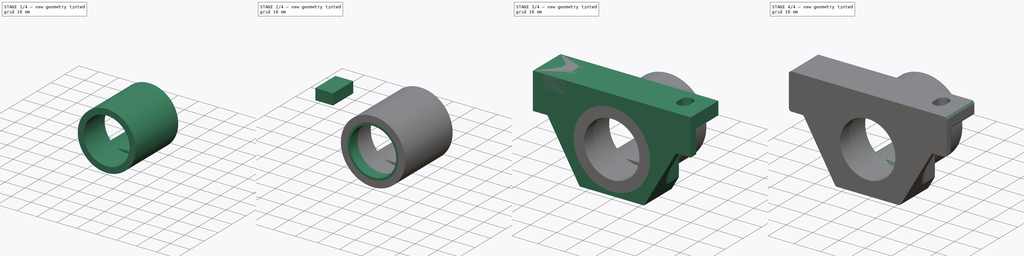
[diagram: build sequence overview — one tinted view per stage of 4, left to right]
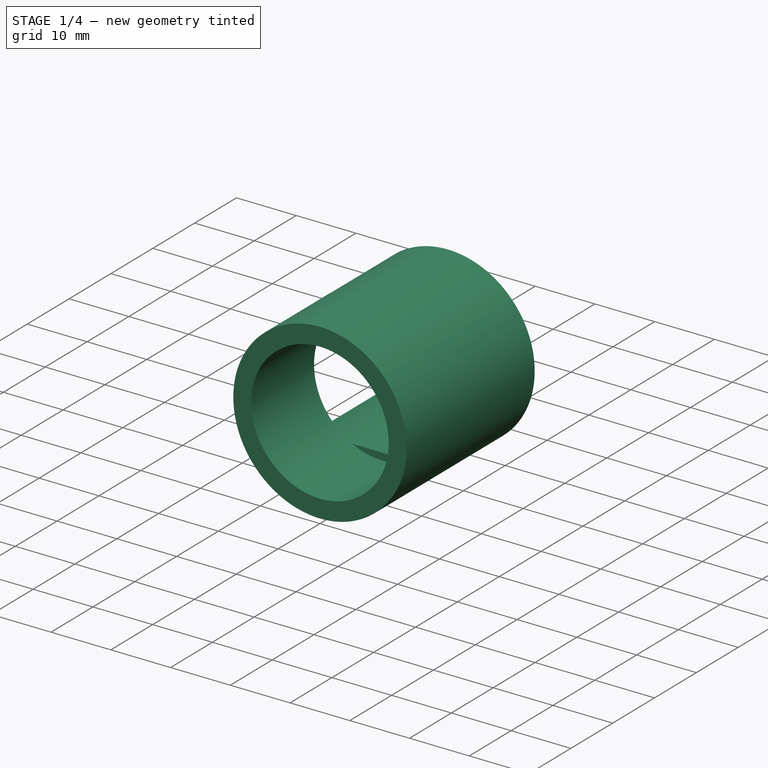
[diagram: stage 1 of 4 — iso view after this stage's code; geometry added in this stage tinted green]
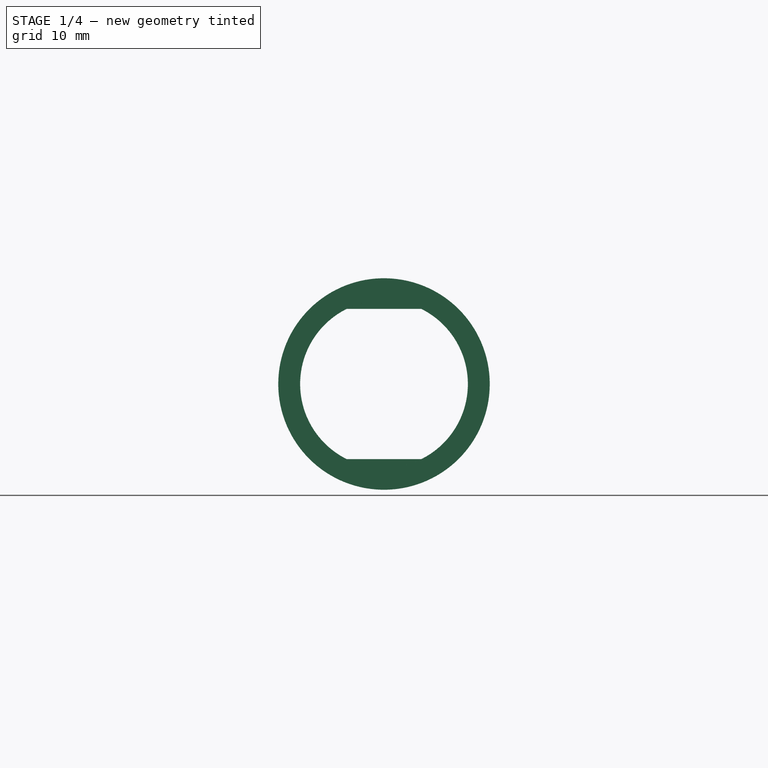
[diagram: stage 1 of 4 — front view after this stage's code; geometry added in this stage tinted green]
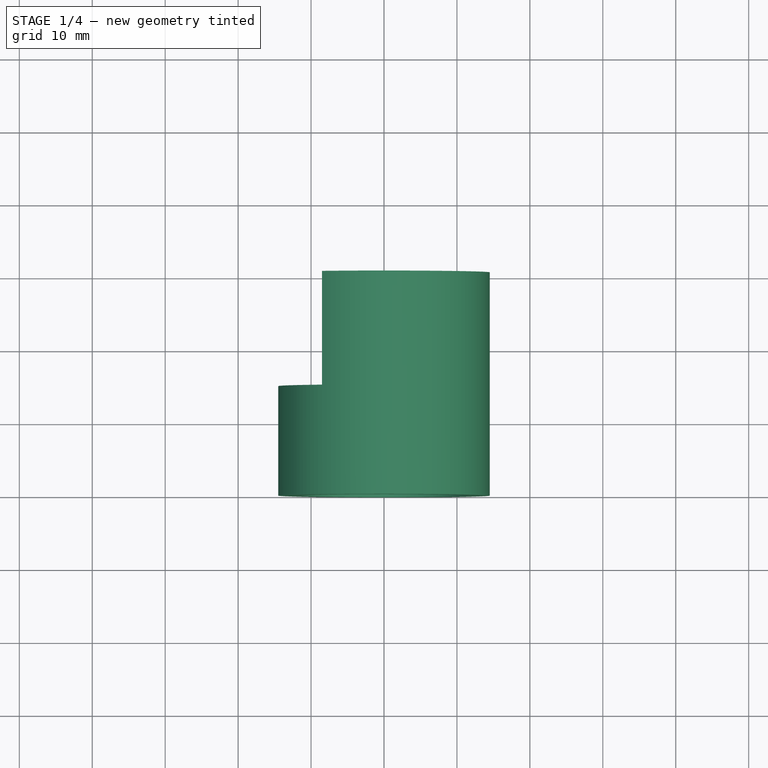
[diagram: stage 1 of 4 — top view after this stage's code; geometry added in this stage tinted green]
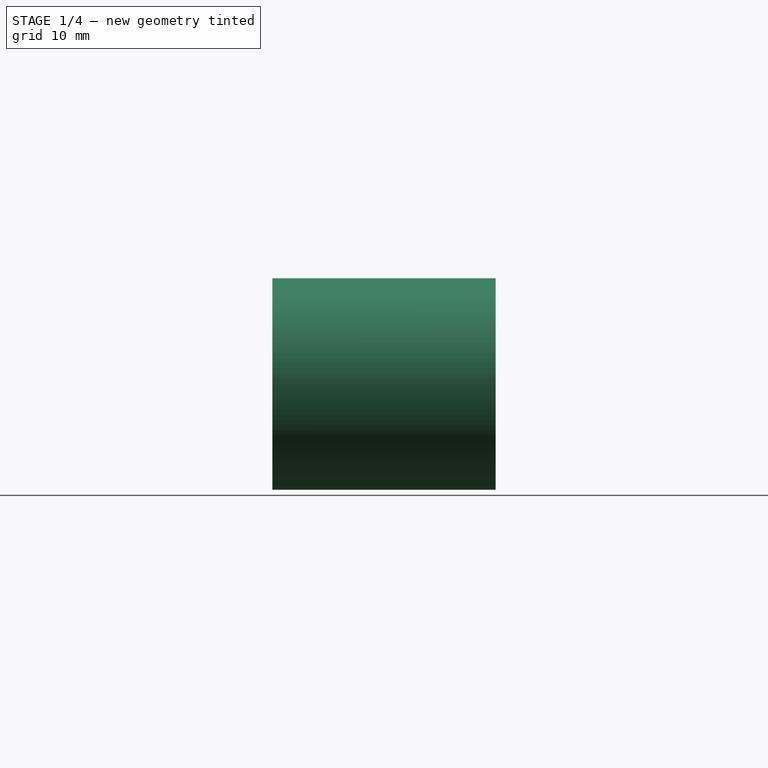
[diagram: stage 1 of 4 — right view after this stage's code; geometry added in this stage tinted green]
FCSTD DOCUMENT  (FreeCAD 0.18R16117 (Git))
Label: VW_SensorBracket_mk6
License: All rights reserved
LicenseURL: http://en.wikipedia.org/wiki/All_rights_reserved
objects: Sketcher::SketchObject×7, PartDesign::Pad×4, PartDesign::Pocket×3, PartDesign::Fillet×3, Part::Box×1, Part::Mirroring×1, PartDesign::Body×1
note: 27 computed .brp shape members not serialized (recipe doc carries the construction recipe); baked Part::Feature solids carry a one-line shape summary decoded from their .brp

FEATURE [Sketcher::SketchObject] Sketch
  MapMode = 5
  Placement = pos=(0,0,0) rot=(1,0,0;1.5708rad)
  Support = -> [XZ_Plane]
  sketch-geometry (2):
    g0: Circle CenterX=0 CenterY=0 CenterZ=0 NormalX=0 NormalY=0 NormalZ=1 AngleXU=0 Radius=11.5
    g1: Circle CenterX=0 CenterY=0 CenterZ=0 NormalX=0 NormalY=0 NormalZ=1 AngleXU=0 Radius=14.5
  constraints (4):
    c: Coincident(g0,g-1)
    c: Coincident(g1,g0)
    c: Diameter(g1) = 29
    c: Diameter(g0) = 23
FEATURE [PartDesign::Pad] Pad
  Length = 15.02
  Length2 = 100
  Placement = pos=(0,0,0) rot=(1,0,0;1.5708rad)
  Profile = -> Sketch
  Reversed = true
  Type = 0
FEATURE [Sketcher::SketchObject] Sketch001
  ExternalGeometry = -> [Pad]
  MapMode = 5
  Placement = pos=(0,15.02,-6.6e-15) rot=(-1,0,0;1.5708rad)
  Support = -> [Pad]
  sketch-geometry (11):
    g0: ArcOfCircle CenterX=0 CenterY=0 CenterZ=0 NormalX=0 NormalY=0 NormalZ=1 AngleXU=0 Radius=14.5 StartAngle=4.08602 EndAngle=8.48035
    g1: ArcOfCircle [constr] CenterX=0 CenterY=0 CenterZ=0 NormalX=0 NormalY=0 NormalZ=1 AngleXU=0 Radius=11.5 StartAngle=3.88061 EndAngle=8.68576
    g2: LineSegment StartX=-5.11468 StartY=10.3 StartZ=0 EndX=5.11468 EndY=10.3 EndZ=0
    g3: LineSegment StartX=-5.11468 StartY=-10.3 StartZ=0 EndX=5.11468 EndY=-10.3 EndZ=0
    g4: LineSegment [constr] StartX=-8.5 StartY=11.7473 StartZ=0 EndX=-8.5 EndY=-11.7473 EndZ=0
    g5: LineSegment StartX=-8.5 StartY=11.7473 StartZ=0 EndX=-8.5 EndY=7.74597 EndZ=0
    g6: LineSegment StartX=-8.5 StartY=-7.74597 StartZ=0 EndX=-8.5 EndY=-11.7473 EndZ=0
    g7: GeomPoint X=14.5 Y=0 Z=0
    g8: ArcOfCircle CenterX=0 CenterY=0 CenterZ=0 NormalX=0 NormalY=0 NormalZ=1 AngleXU=0 Radius=11.5 StartAngle=2.0317 EndAngle=2.40257
    g9: ArcOfCircle CenterX=0 CenterY=0 CenterZ=0 NormalX=0 NormalY=0 NormalZ=1 AngleXU=0 Radius=11.5 StartAngle=5.17329 EndAngle=7.39308
    g10: ArcOfCircle CenterX=0 CenterY=0 CenterZ=0 NormalX=0 NormalY=0 NormalZ=1 AngleXU=0 Radius=11.5 StartAngle=3.88061 EndAngle=4.25149
  constraints (30):
    c: Coincident(g0,g-1)
    c: Coincident(g1,g0)
    c: Equal(g1,g-4)
    c: Equal(g0,g-3)
    c: PointOnObject(g2,g1)
    c: Horizontal(g2)
    c: Symmetric(g2,g3,g-1)
    c: Equal(g2,g3)
    c: Vertical(g4)
    c: Coincident(g0,g4)
    c: Coincident(g5,g1)
    c: Coincident(g5,g0)
    c: Vertical(g5)
    c: Coincident(g6,g1)
    c: Vertical(g6)
    c: Coincident(g6,g0)
    c: Coincident(g0,g4)
    c: PointOnObject(g7,g0)
    c: PointOnObject(g7,g-1)
    c: Coincident(g8,g0)
    c: Coincident(g8,g5)
    c: Coincident(g8,g2)
    c: Coincident(g9,g0)
    c: Coincident(g9,g2)
    c: Coincident(g9,g3)
    c: Coincident(g10,g0)
    c: Coincident(g10,g3)
    c: Coincident(g10,g6)
    c: Distance(g7,g4) = 23
    c: Distance(g2,g3) = 20.6
FEATURE [PartDesign::Pad] Pad001
  BaseFeature = -> Pad
  Length = 15.6
  Length2 = 100
  Placement = pos=(0,0,0) rot=(1,0,0;1.5708rad)
  Profile = -> Sketch001
  Type = 0
FEATURE [Sketcher::SketchObject] Sketch002
  ExternalGeometry = -> [Pad001]
  MapMode = 5
  Support = -> [XY_Plane]
  sketch-geometry (4):
    g0: LineSegment StartX=-2.125 StartY=21.94 StartZ=0 EndX=2.125 EndY=21.94 EndZ=0
    g1: LineSegment StartX=2.125 StartY=21.94 StartZ=0 EndX=2.125 EndY=28.24 EndZ=0
    g2: LineSegment StartX=2.125 StartY=28.24 StartZ=0 EndX=-2.125 EndY=28.24 EndZ=0
    g3: LineSegment StartX=-2.125 StartY=28.24 StartZ=0 EndX=-2.125 EndY=21.94 EndZ=0
  constraints (11):
    c: Coincident(g0,g1)
    c: Coincident(g1,g2)
    c: Coincident(g2,g3)
    c: Coincident(g3,g0)
    c: Horizontal(g0)
    c: Vertical(g1)
    c: Vertical(g3)
    c: DistanceY(g3,g3) = 6.3
    c: Symmetric(g2,g1,g-2)
    c: DistanceX(g0,g0) = 4.25
    c: DistanceY(g-1,g1) = 28.24
FEATURE [PartDesign::Pocket] Pocket
  BaseFeature = -> Pad001
  Length = 12
  Length2 = 12
  Placement = pos=(0,0,0) rot=(1,0,0;1.5708rad)
  Profile = -> Sketch002
  Type = 4
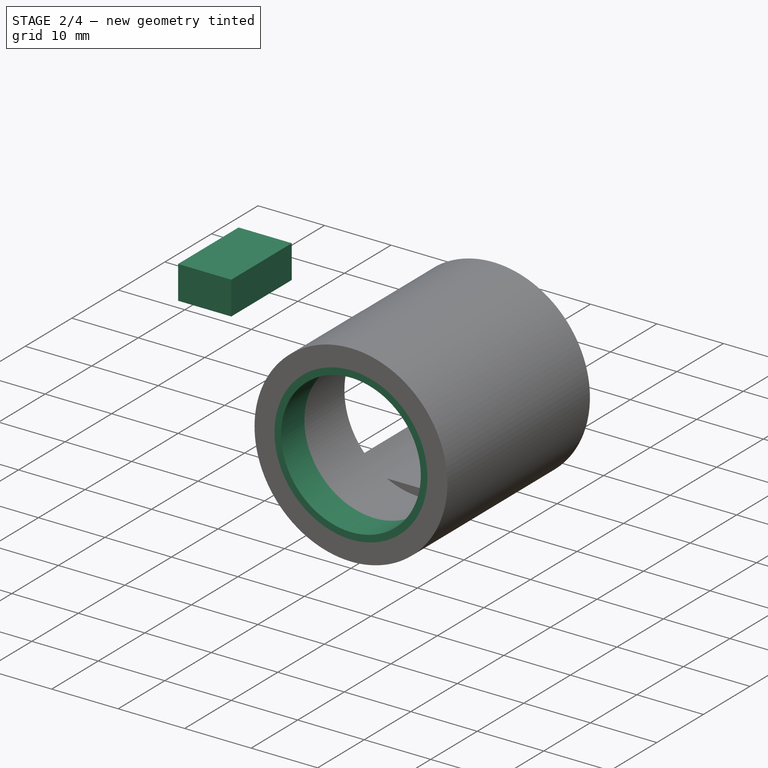
[diagram: stage 2 of 4 — iso view after this stage's code; geometry added in this stage tinted green]
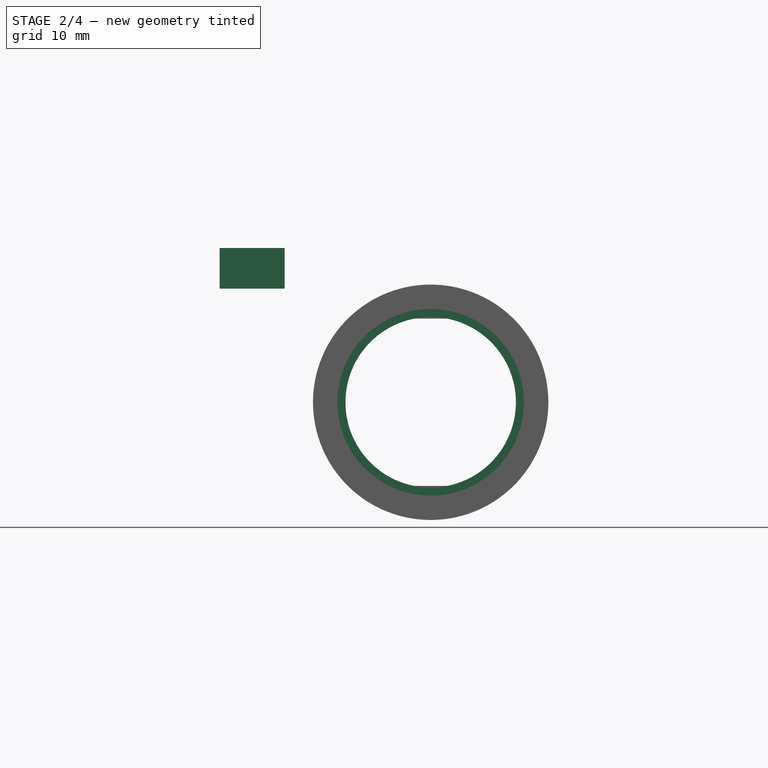
[diagram: stage 2 of 4 — front view after this stage's code; geometry added in this stage tinted green]
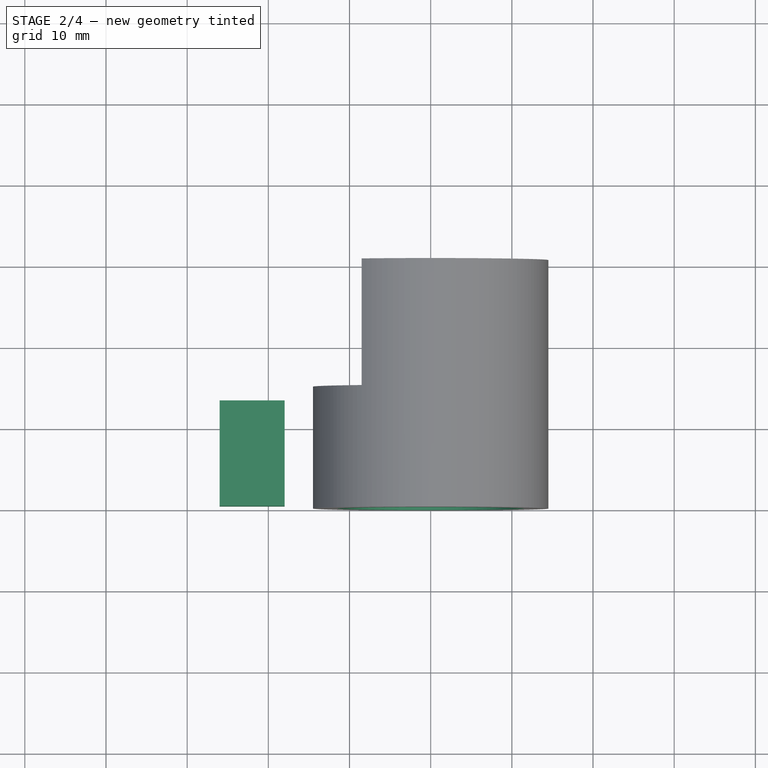
[diagram: stage 2 of 4 — top view after this stage's code; geometry added in this stage tinted green]
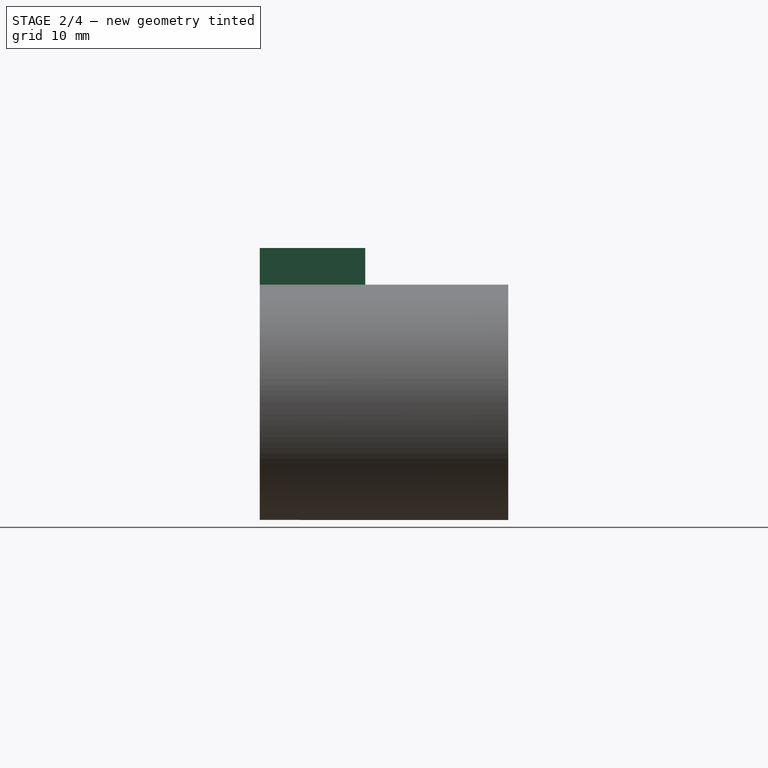
[diagram: stage 2 of 4 — right view after this stage's code; geometry added in this stage tinted green]
FEATURE [Sketcher::SketchObject] Sketch003
  ExternalGeometry = -> [Pocket]
  MapMode = 5
  Placement = pos=(0,0,0) rot=(1,0,0;1.5708rad)
  Support = -> [Pocket]
  sketch-geometry (2):
    g0: Circle CenterX=0 CenterY=0 CenterZ=0 NormalX=0 NormalY=0 NormalZ=1 AngleXU=0 Radius=14.3806
    g1: Circle CenterX=0 CenterY=0 CenterZ=0 NormalX=0 NormalY=0 NormalZ=1 AngleXU=0 Radius=10.5
  constraints (3):
    c: Coincident(g0,g-1)
    c: Coincident(g1,g0)
    c: Diameter(g1) = 21
FEATURE [Part::Box] Box  label="Cube"
  AttacherType = Attacher::AttachEngine3D
  Height = 5
  Length = 8
  Placement = pos=(18,0,14) rot=(0,0,1;0rad)
  Width = 13
FEATURE [Part::Mirroring] Part__Mirroring  label="Cube (Mirror #1)"
  Base = (0,0,0)
  Normal = (1,0,0)
  Source = -> Box
FEATURE [PartDesign::Pad] Pad002
  BaseFeature = -> Pocket
  Length = 5
  Length2 = 100
  Placement = pos=(0,0,0) rot=(1,0,0;1.5708rad)
  Profile = -> Sketch003
  Reversed = true
  Type = 0
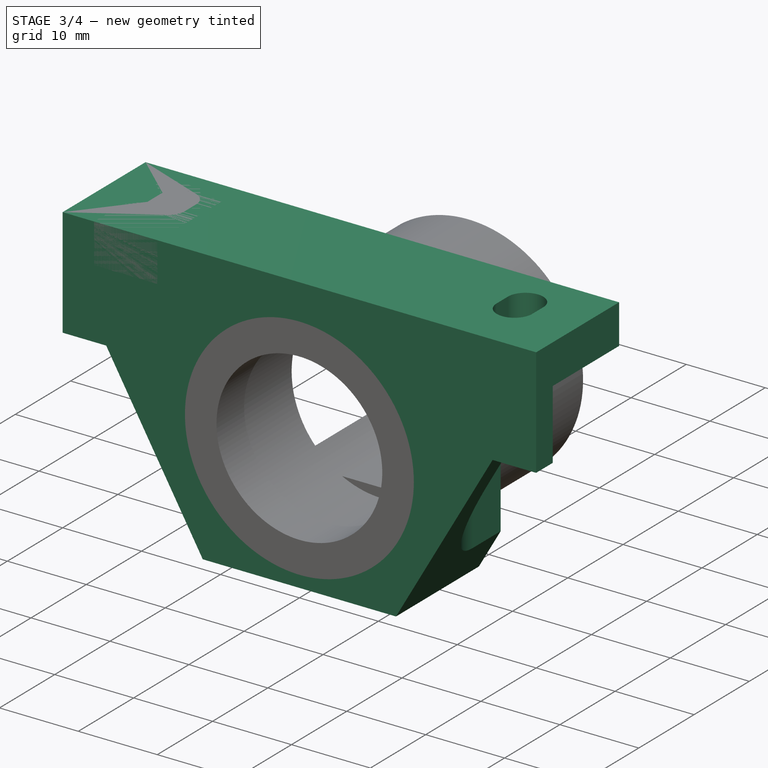
[diagram: stage 3 of 4 — iso view after this stage's code; geometry added in this stage tinted green]
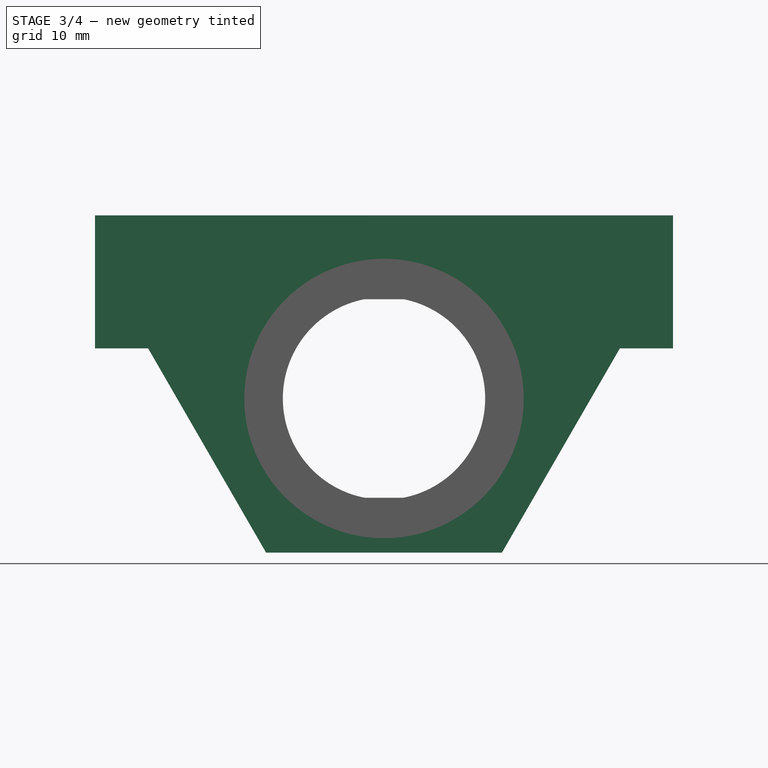
[diagram: stage 3 of 4 — front view after this stage's code; geometry added in this stage tinted green]
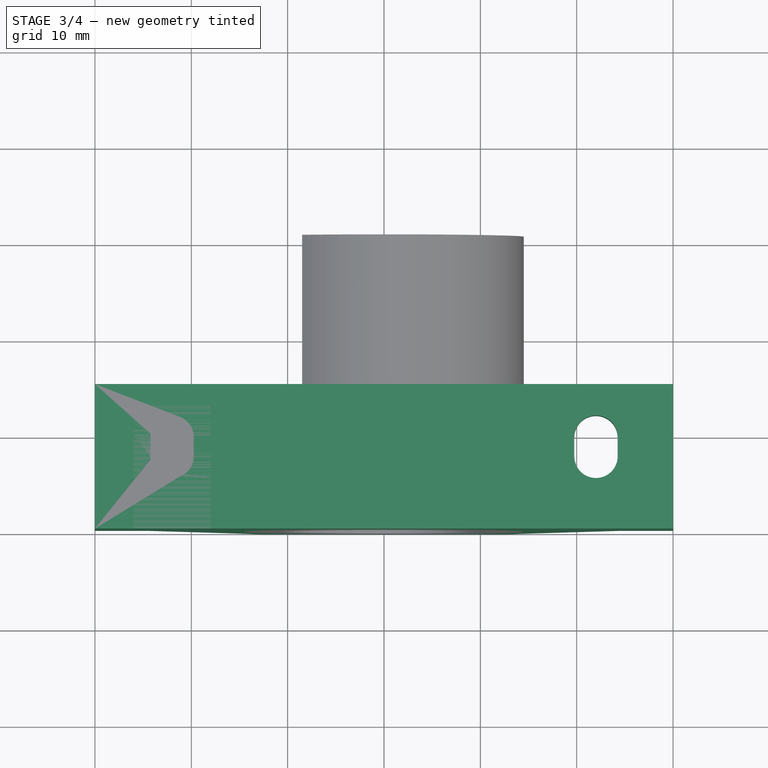
[diagram: stage 3 of 4 — top view after this stage's code; geometry added in this stage tinted green]
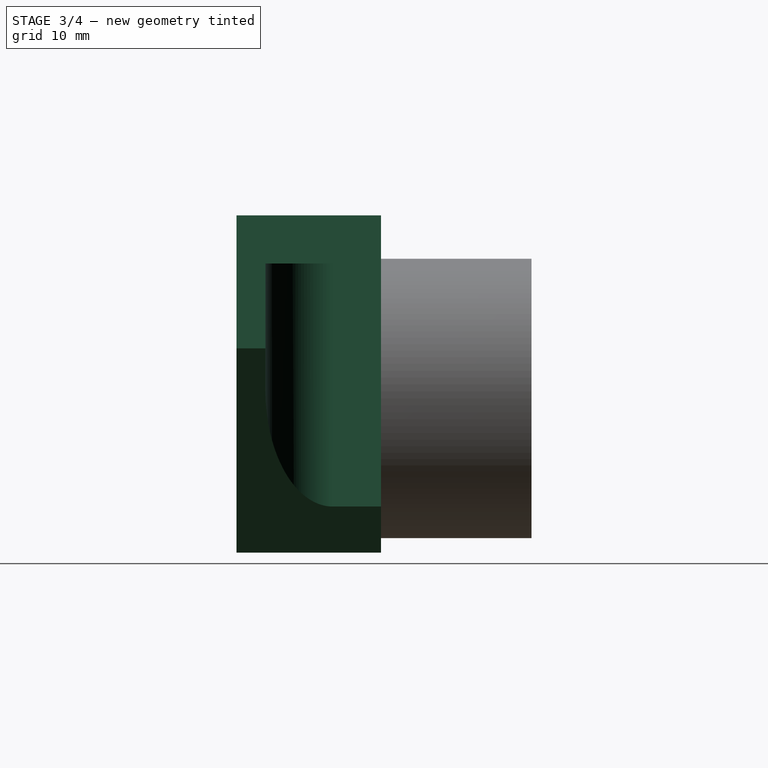
[diagram: stage 3 of 4 — right view after this stage's code; geometry added in this stage tinted green]
FEATURE [Sketcher::SketchObject] Sketch004
  ExternalGeometry = -> [Pad002]
  MapMode = 5
  Placement = pos=(0,0,0) rot=(1,0,0;1.5708rad)
  Support = -> [Pad002]
  sketch-geometry (14):
    g0: Circle CenterX=0 CenterY=0 CenterZ=0 NormalX=0 NormalY=0 NormalZ=1 AngleXU=0 Radius=14.5
    g1: LineSegment StartX=12.2398 StartY=-16 StartZ=0 EndX=24.4797 EndY=5.2 EndZ=0
    g2: LineSegment [constr] StartX=24.4797 StartY=5.2 StartZ=0 EndX=12.2398 EndY=26.4 EndZ=0
    g3: LineSegment [constr] StartX=12.2398 StartY=26.4 StartZ=0 EndX=-12.2398 EndY=26.4 EndZ=0
    g4: LineSegment [constr] StartX=-12.2398 StartY=26.4 StartZ=0 EndX=-24.4797 EndY=5.2 EndZ=0
    g5: LineSegment StartX=-24.4797 StartY=5.2 StartZ=0 EndX=-12.2398 EndY=-16 EndZ=0
    g6: LineSegment StartX=-12.2398 StartY=-16 StartZ=0 EndX=12.2398 EndY=-16 EndZ=0
    g7: Circle [constr] CenterX=0 CenterY=5.2 CenterZ=0 NormalX=0 NormalY=0 NormalZ=1 AngleXU=0 Radius=24.4797
    g8: LineSegment StartX=-30 StartY=19 StartZ=0 EndX=30 EndY=19 EndZ=0
    g9: LineSegment StartX=30 StartY=19 StartZ=0 EndX=30 EndY=5.2 EndZ=0
    g10: LineSegment [constr] StartX=30 StartY=5.2 StartZ=0 EndX=-30 EndY=5.2 EndZ=0
    g11: LineSegment StartX=-30 StartY=5.2 StartZ=0 EndX=-30 EndY=19 EndZ=0
    g12: LineSegment StartX=-30 StartY=5.2 StartZ=0 EndX=-24.4797 EndY=5.2 EndZ=0
    g13: LineSegment StartX=24.4797 StartY=5.2 StartZ=0 EndX=30 EndY=5.2 EndZ=0
  constraints (34):
    c: Coincident(g0,g-1)
    c: Equal(g0,g-3)
    c: Coincident(g1,g2)
    c: Coincident(g2,g3)
    c: Coincident(g3,g4)
    c: Coincident(g4,g5)
    c: Coincident(g5,g6)
    c: Coincident(g6,g1)
    c: Equal(g1, g2-g6) x5
    c: PointOnObject(g1,g7)
    c: PointOnObject(g2,g7)
    c: PointOnObject(g3,g7)
    c: PointOnObject(g4,g7)
    c: PointOnObject(g5,g7)
    c: PointOnObject(g6,g7)
    c: PointOnObject(g7,g-2)
    c: Horizontal(g6)
    c: Distance(g7,g0) = 5.2
    c: Coincident(g8,g9)
    c: Coincident(g9,g10)
    c: Coincident(g10,g11)
    c: Coincident(g11,g8)
    c: Horizontal(g10)
    c: Vertical(g9)
    c: Vertical(g11)
    c: PointOnObject(g5,g10)
    c: Symmetric(g8,g8,g-2)
    c: Coincident(g12,g11)
    c: Coincident(g12,g5)
    c: Coincident(g13,g1)
    c: Coincident(g13,g9)
    c: Distance(g8) = 60
    c: Distance(g0,g8) = 19
    c: Distance(g0,g6) = 16
FEATURE [PartDesign::Pad] Pad003
  BaseFeature = -> Pad002
  Length = 15
  Length2 = 100
  Placement = pos=(0,0,0) rot=(1,0,0;1.5708rad)
  Profile = -> Sketch004
  Reversed = true
  Type = 0
FEATURE [Sketcher::SketchObject] Sketch005
  ExternalGeometry = -> [Pad003]
  MapMode = 5
  Placement = pos=(1.7e-15,2.9e-15,5.2) rot=(1,0,0;3.14159rad)
  Support = -> [Pad003]
  sketch-geometry (10):
    g0: LineSegment StartX=-30 StartY=-15 StartZ=0 EndX=-15 EndY=-15 EndZ=0
    g1: LineSegment StartX=-15 StartY=-15 StartZ=0 EndX=-15 EndY=-10 EndZ=0
    g2: LineSegment StartX=-22 StartY=-3 StartZ=0 EndX=-30 EndY=-3 EndZ=0
    g3: LineSegment StartX=-30 StartY=-3 StartZ=0 EndX=-30 EndY=-15 EndZ=0
    g4: LineSegment StartX=30 StartY=-15 StartZ=0 EndX=15 EndY=-15 EndZ=0
    g5: LineSegment StartX=15 StartY=-15 StartZ=0 EndX=15 EndY=-10 EndZ=0
    g6: LineSegment StartX=22 StartY=-3 StartZ=0 EndX=30 EndY=-3 EndZ=0
    g7: LineSegment StartX=30 StartY=-3 StartZ=0 EndX=30 EndY=-15 EndZ=0
    g8: ArcOfCircle CenterX=-22 CenterY=-10 CenterZ=0 NormalX=0 NormalY=0 NormalZ=1 AngleXU=0 Radius=7 StartAngle=0 EndAngle=1.5708
    g9: ArcOfCircle CenterX=22 CenterY=-10 CenterZ=0 NormalX=0 NormalY=0 NormalZ=1 AngleXU=0 Radius=7 StartAngle=1.5708 EndAngle=3.14159
  constraints (26):
    c: Coincident(g0,g1)
    c: Coincident(g2,g3)
    c: Coincident(g3,g0)
    c: Horizontal(g0)
    c: Horizontal(g2)
    c: Vertical(g1)
    c: Vertical(g3)
    c: Coincident(g0,g-5)
    c: Coincident(g4,g5)
    c: Coincident(g6,g7)
    c: Coincident(g7,g4)
    c: Horizontal(g4)
    c: Horizontal(g6)
    c: Vertical(g5)
    c: Vertical(g7)
    c: Coincident(g4,g-7)
    c: Equal(g6,g2)
    c: Equal(g1,g5)
    c: Tangent(g1,g8) = -1.5708
    c: Tangent(g2,g8) = -1.5708
    c: Tangent(g5,g9) = 1.5708
    c: Tangent(g6,g9) = 1.5708
    c: Equal(g9,g8)
    c: Radius(g8) = 7
    c: Distance(g2,g-4) = 3
    c: DistanceX(g0,g0) = 15
FEATURE [PartDesign::Pocket] Pocket001
  BaseFeature = -> Pad003
  Length = 8.8
  Length2 = 26
  Placement = pos=(0,0,0) rot=(1,0,0;1.5708rad)
  Profile = -> Sketch005
  Reversed = true
  Type = 4
FEATURE [Sketcher::SketchObject] Sketch006
  MapMode = 5
  Placement = pos=(0,1.27e-14,19) rot=(0,0,1;3.14159rad)
  Support = -> [Pocket001]
  sketch-geometry (10):
    g0: Circle [constr] CenterX=-22 CenterY=-9.5 CenterZ=0 NormalX=0 NormalY=0 NormalZ=1 AngleXU=0 Radius=2.25
    g1: Circle [constr] CenterX=22 CenterY=-9.5 CenterZ=0 NormalX=0 NormalY=0 NormalZ=1 AngleXU=0 Radius=2.25
    g2: ArcOfCircle CenterX=-22 CenterY=-9.5 CenterZ=0 NormalX=0 NormalY=0 NormalZ=1 AngleXU=0 Radius=2.25 StartAngle=3.14159 EndAngle=6.28319
    g3: ArcOfCircle CenterX=-22 CenterY=-7.5 CenterZ=0 NormalX=0 NormalY=0 NormalZ=1 AngleXU=0 Radius=2.25 StartAngle=0 EndAngle=3.14159
    g4: LineSegment StartX=-19.75 StartY=-9.5 StartZ=0 EndX=-19.75 EndY=-7.5 EndZ=0
    g5: LineSegment StartX=-24.25 StartY=-9.5 StartZ=0 EndX=-24.25 EndY=-7.5 EndZ=0
    g6: ArcOfCircle CenterX=22 CenterY=-9.5 CenterZ=0 NormalX=0 NormalY=0 NormalZ=1 AngleXU=0 Radius=2.25 StartAngle=3.14159 EndAngle=6.28319
    g7: ArcOfCircle CenterX=22 CenterY=-7.5 CenterZ=0 NormalX=0 NormalY=0 NormalZ=1 AngleXU=0 Radius=2.25 StartAngle=1e-16 EndAngle=3.14159
    g8: LineSegment StartX=24.25 StartY=-9.5 StartZ=0 EndX=24.25 EndY=-7.5 EndZ=0
    g9: LineSegment StartX=19.75 StartY=-9.5 StartZ=0 EndX=19.75 EndY=-7.5 EndZ=0
  constraints (23):
    c: Symmetric(g0,g1,g-2)
    c: Equal(g0,g1)
    c: DistanceX(g-2,g1) = 22
    c: Diameter(g1) = 4.5
    c: DistanceY(g1,g-1) = 9.5
    c: Tangent(g2,g5) = 1.5708
    c: Tangent(g2,g4) = -1.5708
    c: Tangent(g4,g3) = -1.5708
    c: Tangent(g5,g3) = 1.5708
    c: Vertical(g4)
    c: Equal(g2,g3)
    c: Coincident(g2,g0)
    c: Tangent(g6,g9) = 1.5708
    c: Tangent(g6,g8) = -1.5708
    c: Tangent(g8,g7) = -1.5708
    c: Tangent(g9,g7) = 1.5708
    c: Vertical(g8)
    c: Equal(g6,g7)
    c: Coincident(g6,g1)
    c: Equal(g6,g1)
    c: Horizontal(g3,g7)
    c: Equal(g2,g0)
    c: DistanceY(g2,g3) = 2
FEATURE [PartDesign::Pocket] Pocket002
  BaseFeature = -> Pocket001
  Length = 5
  Length2 = 100
  Placement = pos=(0,0,0) rot=(1,0,0;1.5708rad)
  Profile = -> Sketch006
  Type = 0
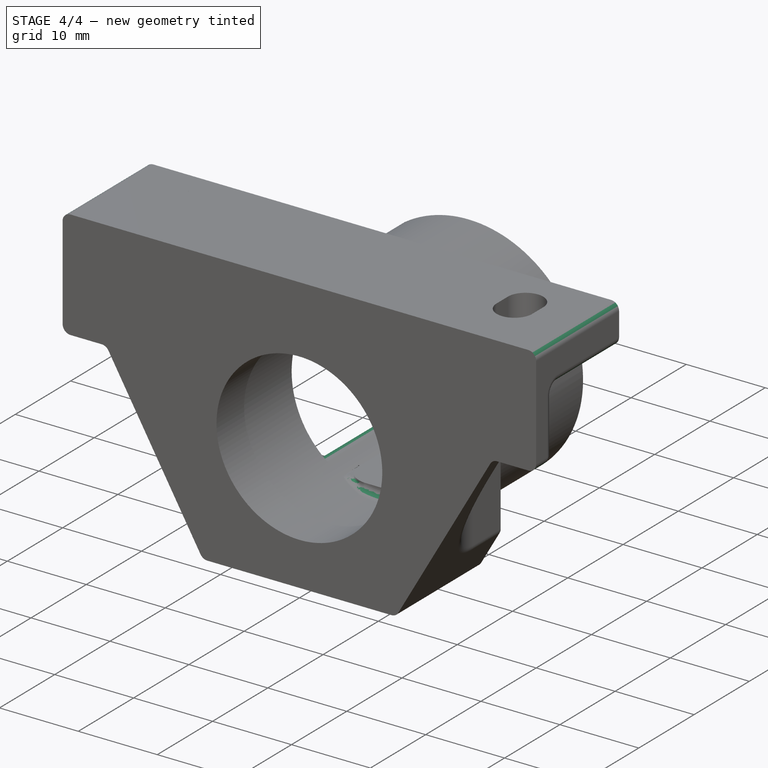
[diagram: stage 4 of 4 — iso view after this stage's code; geometry added in this stage tinted green]
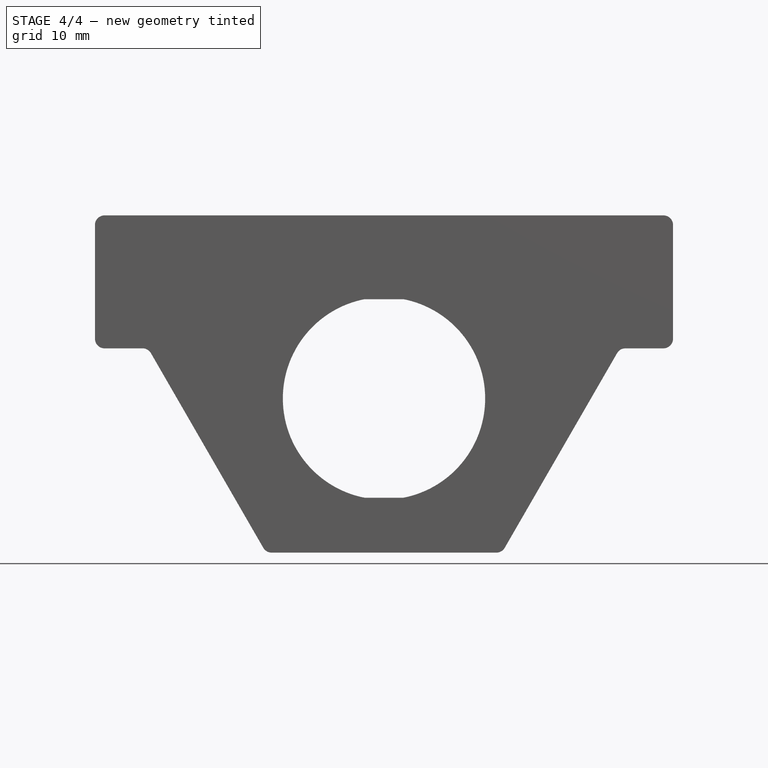
[diagram: stage 4 of 4 — front view after this stage's code; geometry added in this stage tinted green]
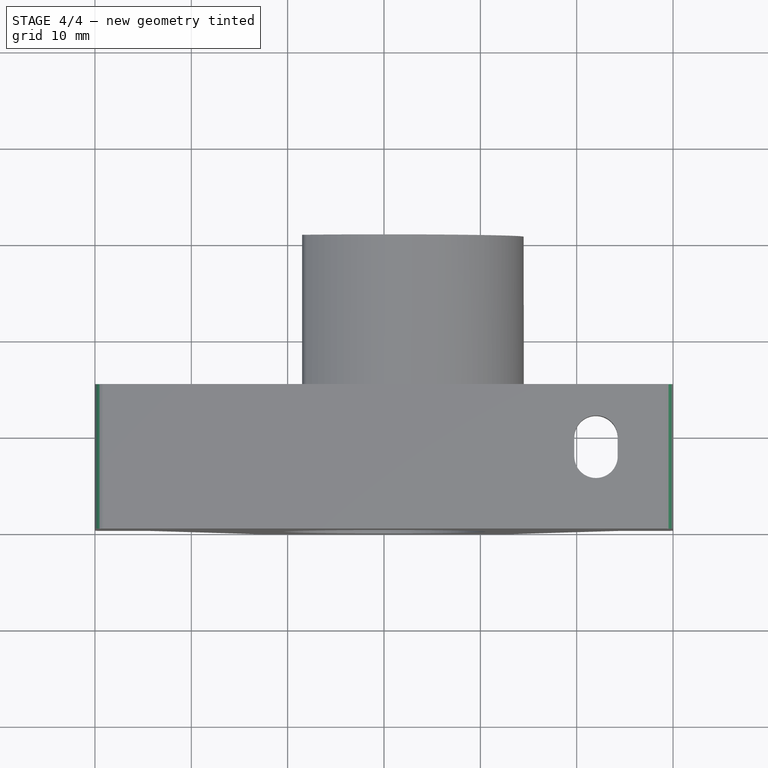
[diagram: stage 4 of 4 — top view after this stage's code; geometry added in this stage tinted green]
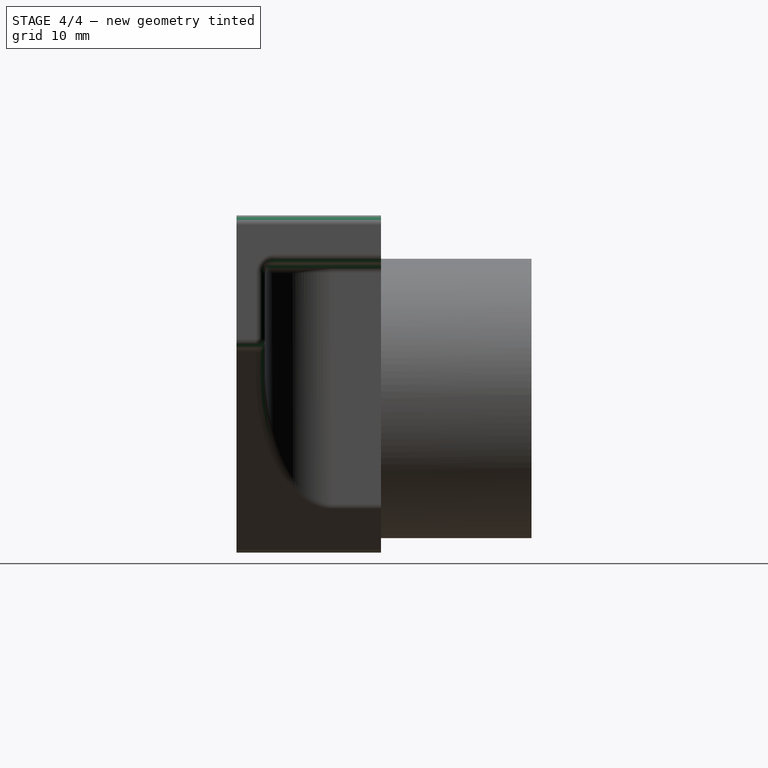
[diagram: stage 4 of 4 — right view after this stage's code; geometry added in this stage tinted green]
FEATURE [PartDesign::Fillet] Fillet
  Base = -> Pocket002 [Edge42,Edge28,Edge23,Edge24,Edge26,Edge52,Edge54,Edge25,Edge39,Edge82,Edge58,Edge55,Edge90,Edge100,Edge38,Edge40,Edge63,Edge61,Edge51]
  BaseFeature = -> Pocket002
  Placement = pos=(0,0,0) rot=(1,0,0;1.5708rad)
  Radius = 1
FEATURE [PartDesign::Fillet] Fillet001
  Base = -> Fillet [Edge162,Edge164,Edge144,Edge143]
  BaseFeature = -> Fillet
  Placement = pos=(0,0,0) rot=(1,0,0;1.5708rad)
  Radius = 1
FEATURE [PartDesign::Fillet] Fillet002
  Base = -> Fillet001 [Edge143,Face89,Edge141,Face90,Edge153,Edge151]
  BaseFeature = -> Fillet001
  Placement = pos=(0,0,0) rot=(1,0,0;1.5708rad)
  Radius = 0.7
FEATURE [PartDesign::Body] Body
  Group = -> [Sketch,Pad,Sketch001,Pad001,Sketch002,Pocket,Sketch003,Pad002,Sketch004,Pad003,Sketch005,Pocket001,Sketch006,Pocket002,Fillet,Fillet001,Fillet002]
  Origin = -> Origin
  Tip = -> Fillet002
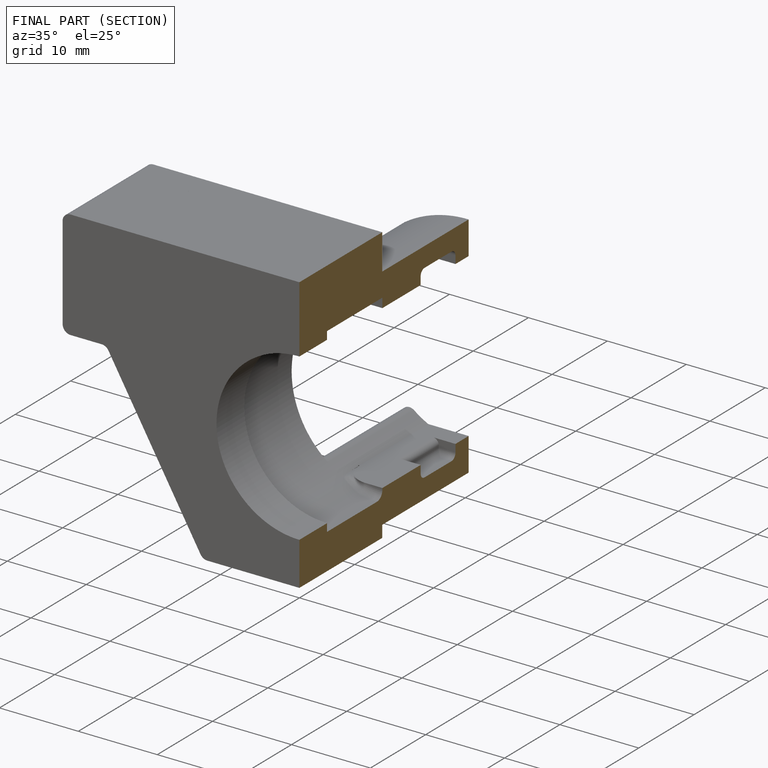
[diagram: finished part — half-section view (interior)]
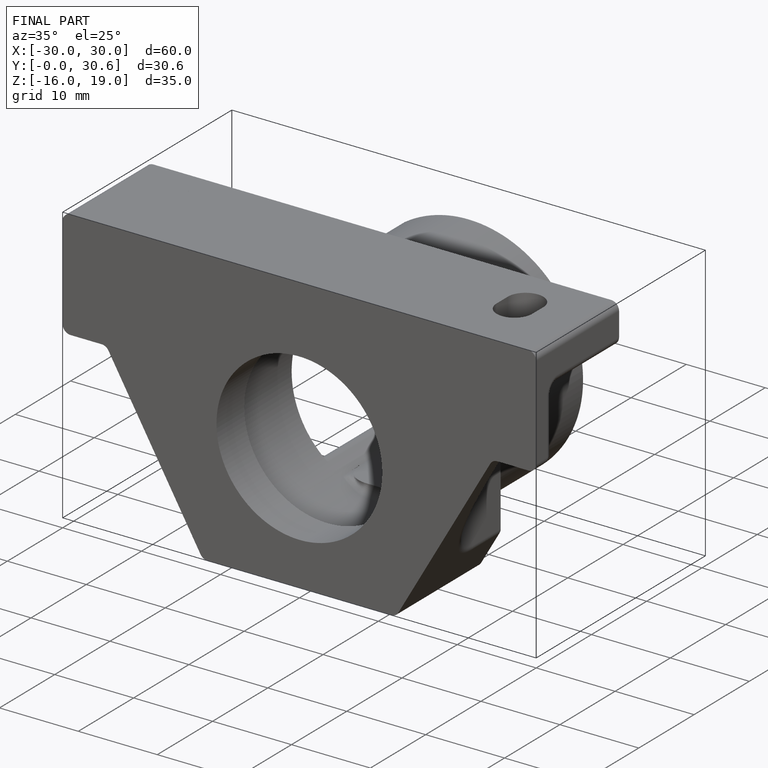
[diagram: finished part — iso view with bounding-box wireframe]
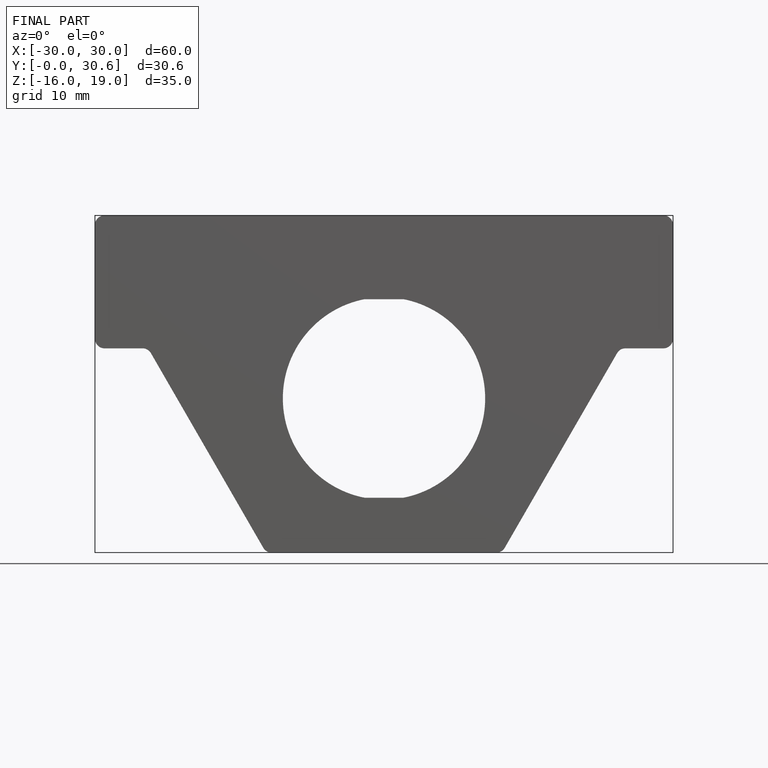
[diagram: finished part — front view with bounding-box wireframe]
